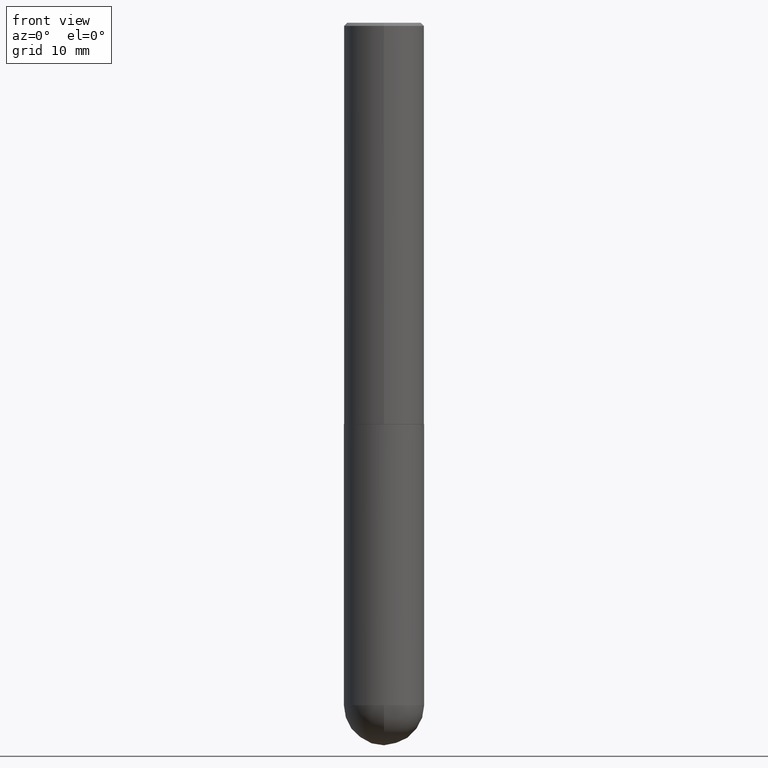
[diagram: clean part render]
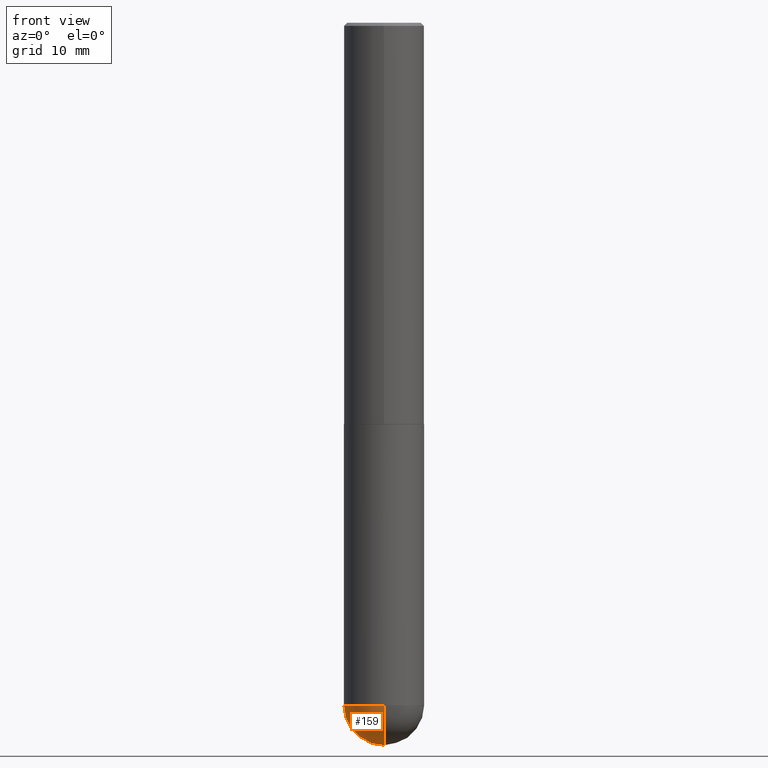
[diagram: same view with one face highlighted and labeled with its STEP entity id]
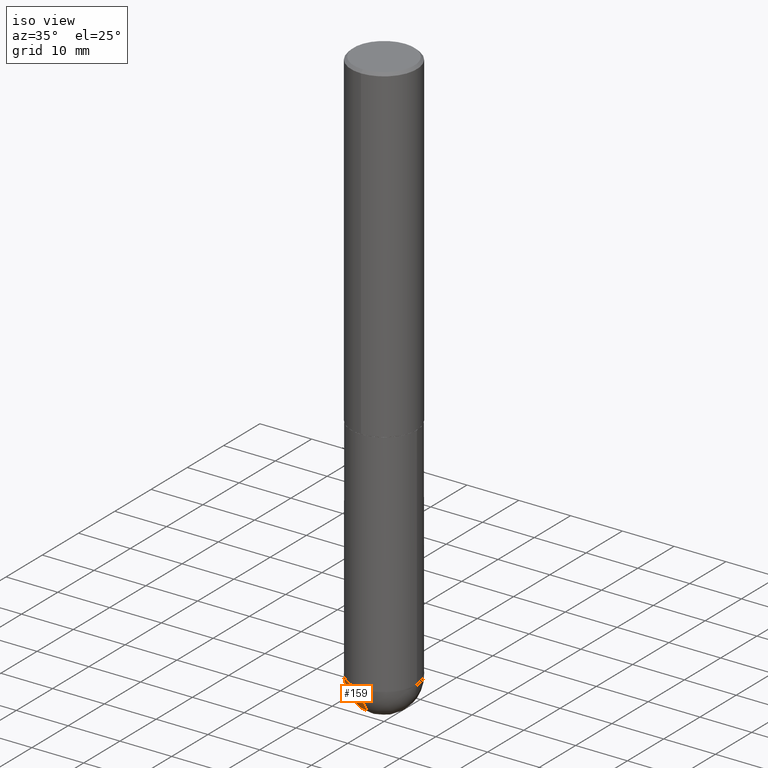
[diagram: same view with one face highlighted and labeled with its STEP entity id]
A machine part, front view. The second image highlights one B-rep face of the part: STEP entity #159.
A second angle (iso view) of the same face is appended — the face is thin or edge-on in the first view.
In plain terms, the highlighted spherical surface has radius 6.35 mm.
Its self-contained STEP definition (entity closure, byte-faithful):
#9 = DIRECTION ( 'NONE',  ( -1.000000000000000000, 6.982962677686265922E-15, -4.883557194083113462E-29 ) ) ;
#18 = DIRECTION ( 'NONE',  ( 1.000000000000000000, -6.982962677686270655E-15, 0.000000000000000000 ) ) ;
#21 = AXIS2_PLACEMENT_3D ( 'NONE', #211, #367, #18 ) ;
#32 = CARTESIAN_POINT ( 'NONE',  ( 1.006212264837294429E-28, -1.531297805822341912E-14, -4.250000000000000000 ) ) ;
#52 = DIRECTION ( 'NONE',  ( -2.445468806185136597E-29, 3.491481338843145583E-15, 1.000000000000000000 ) ) ;
#54 = CIRCLE ( 'NONE', #282, 0.2500000000000001110 ) ;
#57 = CARTESIAN_POINT ( 'NONE',  ( 1.745740669421669032E-15, 0.2499999999999849842, -4.250000000000001776 ) ) ;
#77 = SPHERICAL_SURFACE ( 'NONE', #325, 0.2500000000000001110 ) ;
#80 = DIRECTION ( 'NONE',  ( 1.000000000000000000, -6.982962677686265922E-15, 4.883557194083112340E-29 ) ) ;
#86 = CARTESIAN_POINT ( 'NONE',  ( 1.006212264837294429E-28, -1.531297805822341912E-14, -4.250000000000000000 ) ) ;
#87 = CARTESIAN_POINT ( 'NONE',  ( 1.039324242628683054E-28, -1.483879569008337040E-14, -4.250000000000000000 ) ) ;
#115 = AXIS2_PLACEMENT_3D ( 'NONE', #86, #216, #392 ) ;
#116 = CIRCLE ( 'NONE', #219, 0.2500000000000000000 ) ;
#117 = CARTESIAN_POINT ( 'NONE',  ( -0.2500000000000000000, -1.000739267919536879E-14, -4.250000000000000000 ) ) ;
#132 = ORIENTED_EDGE ( 'NONE', *, *, #184, .T. ) ;
#140 = CARTESIAN_POINT ( 'NONE',  ( -1.776356839400148307E-15, -0.2500000000000151545, -4.249999999999999112 ) ) ;
#141 = VERTEX_POINT ( 'NONE', #140 ) ;
#154 = ORIENTED_EDGE ( 'NONE', *, *, #166, .F. ) ;
#159 = ADVANCED_FACE ( 'NONE', ( #359 ), #77, .T. ) ;
#166 = EDGE_CURVE ( 'NONE', #196, #405, #54, .T. ) ;
#180 = DIRECTION ( 'NONE',  ( 1.000000000000000000, -6.982962677686270655E-15, 0.000000000000000000 ) ) ;
#184 = EDGE_CURVE ( 'NONE', #196, #141, #292, .T. ) ;
#192 = ORIENTED_EDGE ( 'NONE', *, *, #240, .F. ) ;
#196 = VERTEX_POINT ( 'NONE', #332 ) ;
#200 = CARTESIAN_POINT ( 'NONE',  ( 1.006212264837294429E-28, -1.531297805822341912E-14, -4.250000000000000000 ) ) ;
#211 = CARTESIAN_POINT ( 'NONE',  ( 1.039324242628683054E-28, -1.483879569008337040E-14, -4.250000000000000000 ) ) ;
#216 = DIRECTION ( 'NONE',  ( -1.000000000000000000, 7.105427357601001070E-15, -4.926315508542082329E-29 ) ) ;
#219 = AXIS2_PLACEMENT_3D ( 'NONE', #87, #52, #180 ) ;
#232 = DIRECTION ( 'NONE',  ( 6.982962677686266711E-15, 1.000000000000000000, 0.000000000000000000 ) ) ;
#240 = EDGE_CURVE ( 'NONE', #405, #255, #243, .T. ) ;
#243 = CIRCLE ( 'NONE', #21, 0.2500000000000000000 ) ;
#255 = VERTEX_POINT ( 'NONE', #117 ) ;
#282 = AXIS2_PLACEMENT_3D ( 'NONE', #32, #80, #232 ) ;
#292 = CIRCLE ( 'NONE', #115, 0.2500000000000001110 ) ;
#308 = EDGE_CURVE ( 'NONE', #255, #141, #116, .T. ) ;
#313 = EDGE_LOOP ( 'NONE', ( #154, #132, #341, #192 ) ) ;
#319 = DIRECTION ( 'NONE',  ( 6.982962677686265922E-15, 1.000000000000000000, -4.370956789862818783E-15 ) ) ;
#325 = AXIS2_PLACEMENT_3D ( 'NONE', #200, #9, #319 ) ;
#332 = CARTESIAN_POINT ( 'NONE',  ( 1.068417942853397052E-28, -1.617054030794486372E-14, -4.500000000000000888 ) ) ;
#341 = ORIENTED_EDGE ( 'NONE', *, *, #308, .F. ) ;
#359 = FACE_OUTER_BOUND ( 'NONE', #313, .T. ) ;
#367 = DIRECTION ( 'NONE',  ( -2.445468806185136597E-29, 3.491481338843145583E-15, 1.000000000000000000 ) ) ;
#392 = DIRECTION ( 'NONE',  ( -7.105427357601001859E-15, -1.000000000000000000, 0.000000000000000000 ) ) ;
#405 = VERTEX_POINT ( 'NONE', #57 ) ;